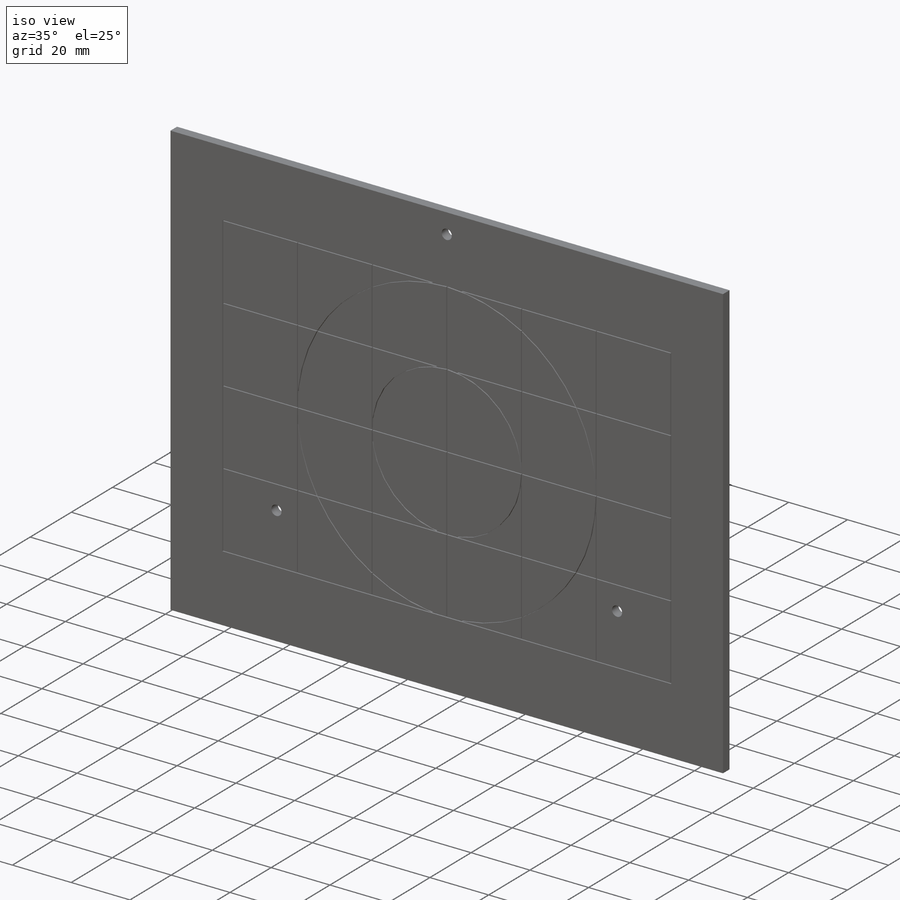
[diagram: iso view]
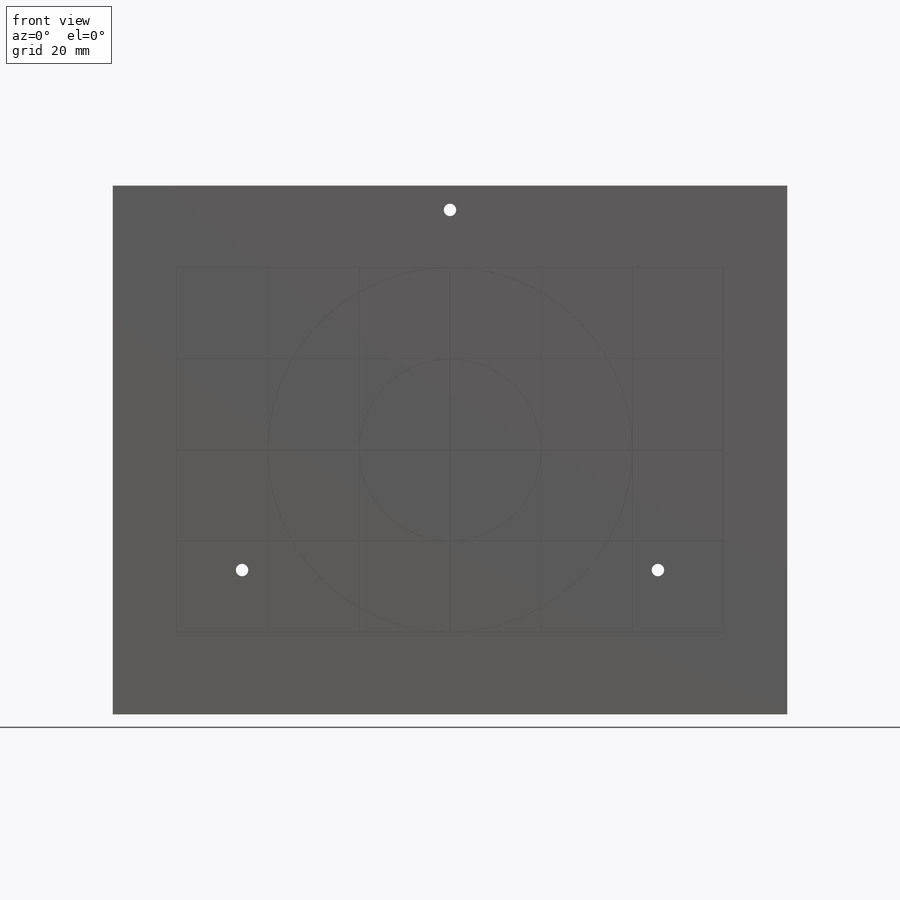
[diagram: front view]
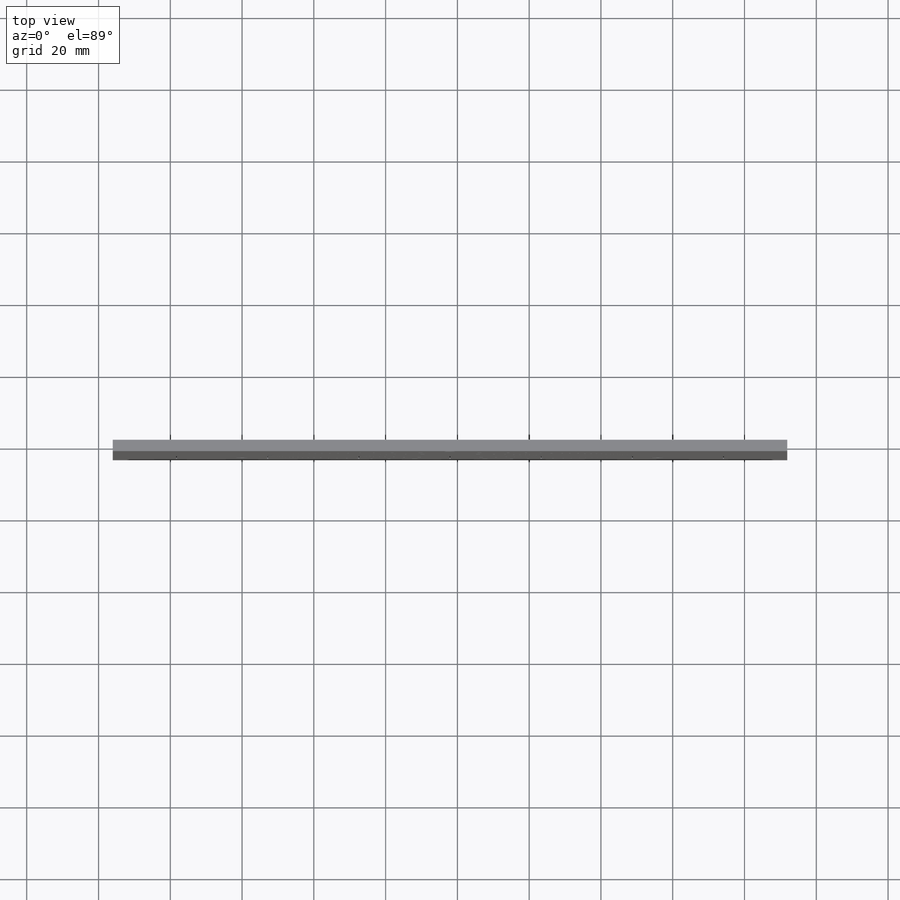
[diagram: top view]
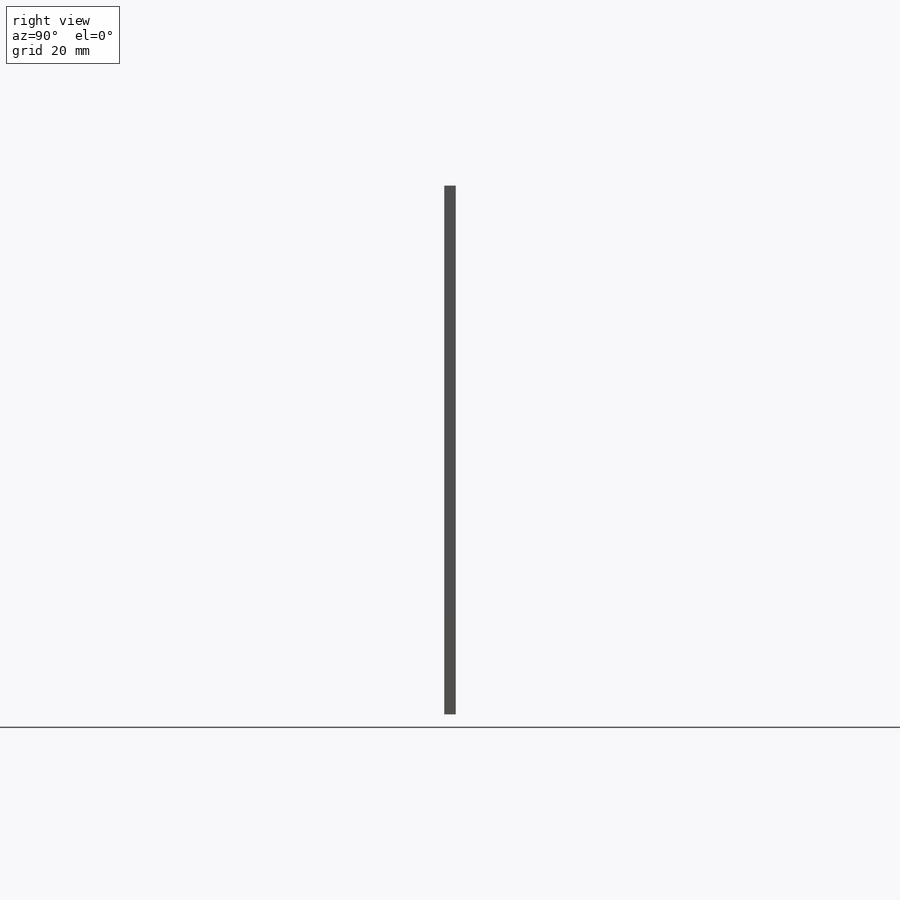
[diagram: right view]
SOLIDWORKS PART (.sldprt)
format: sldprt  version: not decoded by parser v0  size: 501,248 bytes
history: native  units: mm
features: sketch x4, thread x3, material x1, extrude x1, hole x1, cut_extrude x1 (+13 scaffold rows collapsed)
feature tree (24):
  scaffold x13  (default folders/planes/origin — collapsed)
  material  "Acrylic (Medium-high impact)"
  sketch  "Sketch1"  dims[D2=2.286mm D1=~115.87734mm D3=187.96mm D4=147.32mm]
  extrude  "Boss-Extrude1"  Depth=3.175mm
  hole  "#8-32 Tapped Hole1"  Diameter=3.4544mm Depth=3.175mm
  sketch  "Sketch3"
  sketch  "Sketch2"  dims[hole-wizard template sketch: 60 standard entries collapsed; hole parameters kept: c18.Thru Tap Drill Depth=3.175mm]
  thread  "Hole Thread1"  Diameter=0mm  [1 undecoded]
  thread  "Hole Thread2"  Diameter=0mm  [1 undecoded]
  thread  "Hole Thread3"  Diameter=0mm  [1 undecoded]
  sketch  "Sketch4"  dims[c1.D1=183.261mm c1.D2=142.5448mm c1.D3=25.4mm c1.D4=25.4mm c1.D5=25.4mm c1.D6=25.4mm c1.D7=25.4mm c1.D8=25.4mm c1.D9=25.4mm c1.D10=25.4mm c1.D11=25.4mm c1.D12=25.4mm c2.D11=25.4mm c2.D13=0.127mm c2.D14=0.127mm c2.D15=0.127mm c2.D16=0.127mm]
  cut_extrude  "Cut-Extrude1"  Depth=0.508mm
decode coverage: 9 of 10 modeling features carry decoded parameters
note: ~ marks probable driven/reference dimensions
note: 3 parameter values undecoded
note: suppression state not decoded; provenance and decode notes live in map.json
